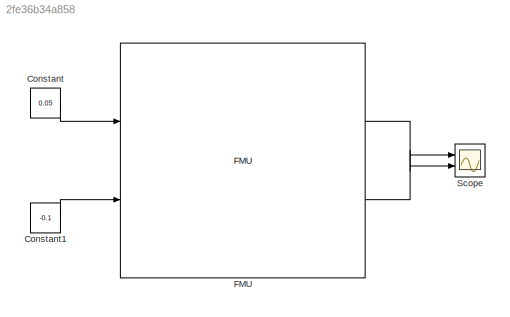
MODEL slx_2fe36b34a858
KIND model
CONFIG AbsTol = auto
CONFIG EnableMultiTasking = off
CONFIG FixedStep = auto
CONFIG MaxStep = auto
CONFIG MinStep = auto
CONFIG RelTol = 1e-3
CONFIG SampleTimeConstraint = Unconstrained
CONFIG Solver = VariableStepAuto
CONFIG SolverName = VariableStepAuto
CONFIG StartTime = 0.0
CONFIG StopTime = 1
BLOCK [Constant] Constant
  Value = 0.05
BLOCK [Constant] Constant1
  Value = -0.1
BLOCK [FMU] FMU
  FMUMode = CoSimulation
  FMUName = MED2018_TireTest.fmu
  FMUSampleTime = -1
  F_z = 4000
  MaskDisplay = if (exist([Simulink.fileGenControl('get','CacheFolder') '\slprj\_fmu\2e348eef1c772c982ddfd0d8934ab7e5\MED2018_TireTest\model.png'],'file'))\n    image([Simulink.fileGenControl('get','CacheFolder') '\slprj\_fmu\2e348eef1c772c982ddfd0d8934ab7e5\MED2018_TireTest\model.png']);\n    text(0.03, 0.97, 'MED2018.TireTest', 'horizontalAlignment', 'left', 'verticalAlignment', 'top');\nelse\n    disp('MED2018.Tir...<+133ch>
  MaskPromptString = wheel|rig|setup|F_z|V_x|Communication StepsizeCommunication stepsize between FMU and Simulink
  MaskType = MED2018.TireTest [Co-Simulation, v2.0]
  Ports = [2, 2]
  V_x = 10
  rig = struct('xTranslation',struct('s0',0,'stateSelect',int32(4)),'yTranslation',struct('s0',0,'stateSelect',int32(4)),'zTranslation',struct('stateSelect',int32(4)),'xMotionEntity',struct('f_crit',50,'fixed_offset',boolean(true)),'yMotionEntity',struct('f_crit',50),'zMotionEntity',struct('f_crit',50),'steerMotionEntity',struct('f_crit',50),'camberMotionEntity',struct('f_crit',50),'steeringAngle',struct(...<+250ch>
  setup = struct('gamma_deg',0,'sweep_time',10)
  wheel = struct('left_wheel',boolean(true),'wheel_number',int32(1),'m',10,'i_xx',1,'contact',struct('generic',struct('v_start',10)),'forces',struct('left_parameters',boolean(true),'verticalDynamics',struct('rho_transition',0.01),'inside_of_valid',struct('k',1)),'visualization',struct('rim2',struct('R0',0.3,'spoke_thickness',0.05)),'hub',struct('rev',struct('phi0',0,'stateSelect',int32(4)),'wheelBody',struc...<+1707ch>
BLOCK [Scope] Scope
  NumInputPorts = 2
  Ports = [2]
  ScopeSpecificationString = Simulink.scopes.TimeScopeBlockCfg('CurrentConfiguration', extmgr.ConfigurationSet(extmgr.Configuration('Core','General UI',true),extmgr.Configuration('Core','Source UI',true),extmgr.Configuration('Sources','WiredSimulink',true),extmgr.Configuration('Visuals','Time Domain',true,'SerializedDisplays',{struct('MinYLimReal','-3863.08886','MaxYLimReal','3877.17594','YLabelReal','','MinYLimMag','  0.0000...<+1394ch>
LINE Constant1:1 -> FMU:2
LINE Constant:1 -> FMU:1
LINE FMU:1 -> Scope:1
LINE FMU:2 -> Scope:2
